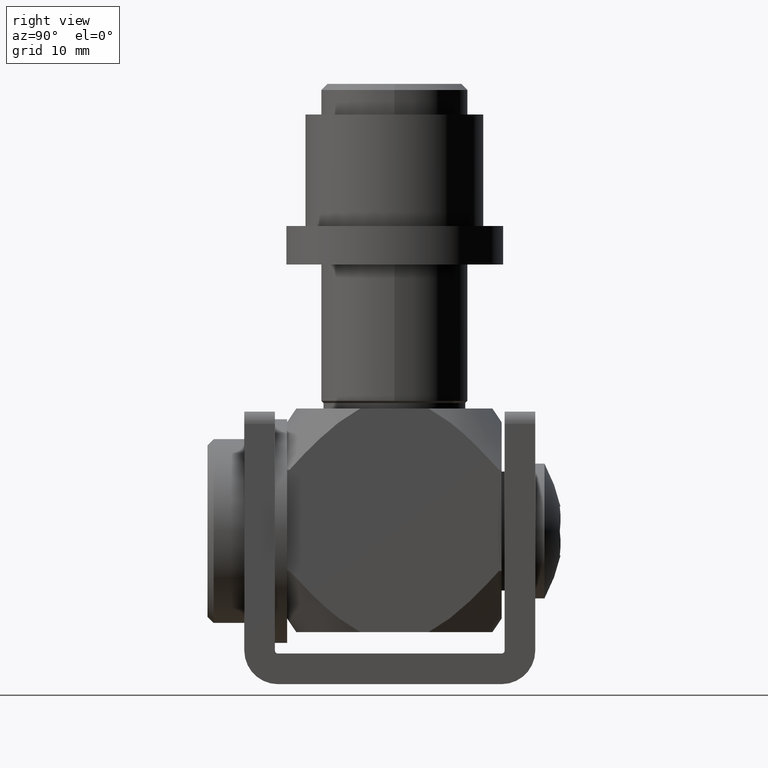
[diagram: clean part render]
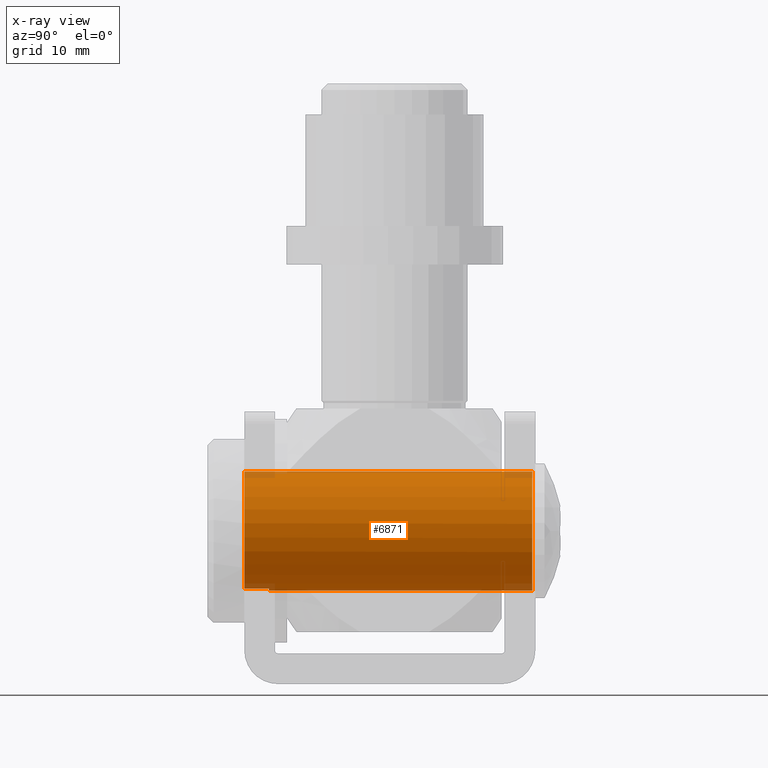
[diagram: x-ray — body ghosted, one internal face saturated and labeled with its STEP entity id]
A machine part, right view, then the same camera in x-ray: the body is ghosted and one INTERNAL B-rep face — a face not visible from any outside direction — is saturated and labeled: STEP entity #6871.
In plain terms, the highlighted cylindrical surface (bore or boss wall) has radius 9.7 mm, axis along (0, -1, 0).
Its self-contained STEP definition (entity closure, byte-faithful):
#50 = EDGE_LOOP ( 'NONE', ( #6623, #7844, #7186, #6592 ) ) ;
#233 = LINE ( 'NONE', #3067, #9075 ) ;
#420 = EDGE_CURVE ( 'NONE', #10344, #4109, #233, .T. ) ;
#650 = CARTESIAN_POINT ( 'NONE',  ( 9.699999999999997513, 53.00000000000000000, 0.000000000000000000 ) ) ;
#838 = VERTEX_POINT ( 'NONE', #10940 ) ;
#1073 = DIRECTION ( 'NONE',  ( 1.000000000000000000, 1.788374717501862054E-16, 0.000000000000000000 ) ) ;
#1566 = EDGE_LOOP ( 'NONE', ( #4855 ) ) ;
#1632 = EDGE_CURVE ( 'NONE', #4109, #838, #4231, .T. ) ;
#1694 = CARTESIAN_POINT ( 'NONE',  ( 9.372299611087989035, 6.000000000000000000, 2.500000000000000000 ) ) ;
#2231 = FACE_OUTER_BOUND ( 'NONE', #1566, .T. ) ;
#3067 = CARTESIAN_POINT ( 'NONE',  ( 9.372299611087990812, 1.609737441509172628E-15, -2.500000000000000000 ) ) ;
#3184 = VERTEX_POINT ( 'NONE', #650 ) ;
#3239 = DIRECTION ( 'NONE',  ( 1.717547996016641227E-16, -1.000000000000000000, -0.000000000000000000 ) ) ;
#3425 = CARTESIAN_POINT ( 'NONE',  ( 0.000000000000000000, 0.000000000000000000, 0.000000000000000000 ) ) ;
#4109 = VERTEX_POINT ( 'NONE', #14384 ) ;
#4231 = CIRCLE ( 'NONE', #12713, 9.700000000000004619 ) ;
#4855 = ORIENTED_EDGE ( 'NONE', *, *, #10351, .T. ) ;
#5290 = CARTESIAN_POINT ( 'NONE',  ( 9.372299611087990812, 1.609737441509172628E-15, 2.500000000000000000 ) ) ;
#5351 = DIRECTION ( 'NONE',  ( 1.000000000000000000, 0.000000000000000000, 0.000000000000000000 ) ) ;
#5392 = DIRECTION ( 'NONE',  ( 1.717547996016641227E-16, -1.000000000000000000, -0.000000000000000000 ) ) ;
#5881 = EDGE_CURVE ( 'NONE', #838, #10887, #13481, .T. ) ;
#6577 = EDGE_CURVE ( 'NONE', #10887, #10344, #6842, .T. ) ;
#6592 = ORIENTED_EDGE ( 'NONE', *, *, #5881, .F. ) ;
#6623 = ORIENTED_EDGE ( 'NONE', *, *, #1632, .F. ) ;
#6842 = CIRCLE ( 'NONE', #11663, 9.700000000000004619 ) ;
#6871 = ADVANCED_FACE ( 'NONE', ( #2231, #7666 ), #7488, .T. ) ;
#7186 = ORIENTED_EDGE ( 'NONE', *, *, #6577, .F. ) ;
#7488 = CYLINDRICAL_SURFACE ( 'NONE', #13509, 9.700000000000004619 ) ;
#7612 = DIRECTION ( 'NONE',  ( 1.717547996016641227E-16, -1.000000000000000000, -0.000000000000000000 ) ) ;
#7666 = FACE_OUTER_BOUND ( 'NONE', #50, .T. ) ;
#7720 = CARTESIAN_POINT ( 'NONE',  ( -9.103004378888197393E-15, 53.00000000000000000, 0.000000000000000000 ) ) ;
#7844 = ORIENTED_EDGE ( 'NONE', *, *, #420, .F. ) ;
#8481 = DIRECTION ( 'NONE',  ( 1.000000000000000000, 1.788374717501862054E-16, 0.000000000000000000 ) ) ;
#8531 = DIRECTION ( 'NONE',  ( 1.717547996016641227E-16, -1.000000000000000000, -0.000000000000000000 ) ) ;
#8638 = CARTESIAN_POINT ( 'NONE',  ( -1.030528797609984391E-15, 5.999999999999998224, 0.000000000000000000 ) ) ;
#8903 = DIRECTION ( 'NONE',  ( -1.717547996016641227E-16, 1.000000000000000000, 0.000000000000000000 ) ) ;
#9075 = VECTOR ( 'NONE', #8903, 1000.000000000000000 ) ;
#10344 = VERTEX_POINT ( 'NONE', #11086 ) ;
#10351 = EDGE_CURVE ( 'NONE', #3184, #3184, #13534, .T. ) ;
#10887 = VERTEX_POINT ( 'NONE', #1694 ) ;
#10940 = CARTESIAN_POINT ( 'NONE',  ( 9.372299611087989035, 10.00000000000000000, 2.500000000000000000 ) ) ;
#11086 = CARTESIAN_POINT ( 'NONE',  ( 9.372299611087989035, 6.000000000000000000, -2.500000000000000000 ) ) ;
#11165 = VECTOR ( 'NONE', #5392, 1000.000000000000000 ) ;
#11348 = DIRECTION ( 'NONE',  ( 2.168404344971009115E-16, -1.000000000000000000, 0.000000000000000000 ) ) ;
#11663 = AXIS2_PLACEMENT_3D ( 'NONE', #8638, #8531, #8481 ) ;
#12609 = DIRECTION ( 'NONE',  ( 1.000000000000000000, 1.717547996016641473E-16, 0.000000000000000000 ) ) ;
#12713 = AXIS2_PLACEMENT_3D ( 'NONE', #14755, #11348, #1073 ) ;
#13481 = LINE ( 'NONE', #5290, #11165 ) ;
#13509 = AXIS2_PLACEMENT_3D ( 'NONE', #3425, #3239, #12609 ) ;
#13534 = CIRCLE ( 'NONE', #14591, 9.700000000000004619 ) ;
#14384 = CARTESIAN_POINT ( 'NONE',  ( 9.372299611087989035, 10.00000000000000000, -2.500000000000000000 ) ) ;
#14591 = AXIS2_PLACEMENT_3D ( 'NONE', #7720, #7612, #5351 ) ;
#14755 = CARTESIAN_POINT ( 'NONE',  ( -1.717547996016640980E-15, 9.999999999999998224, 0.000000000000000000 ) ) ;